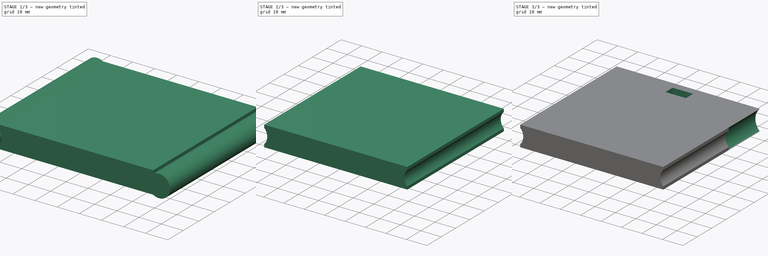
[diagram: build sequence overview — one tinted view per stage of 3, left to right]
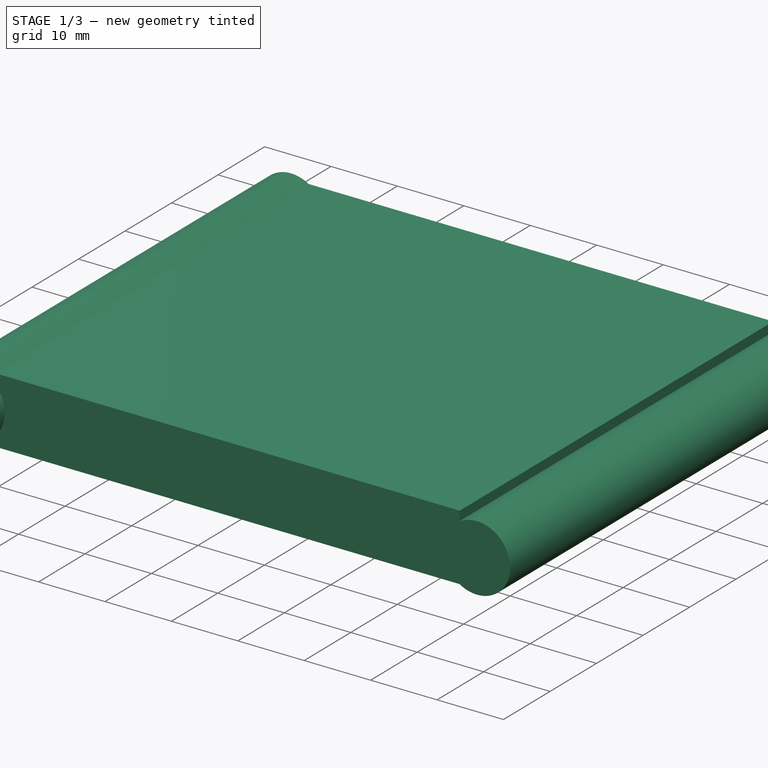
[diagram: stage 1 of 3 — iso view after this stage's code; geometry added in this stage tinted green]
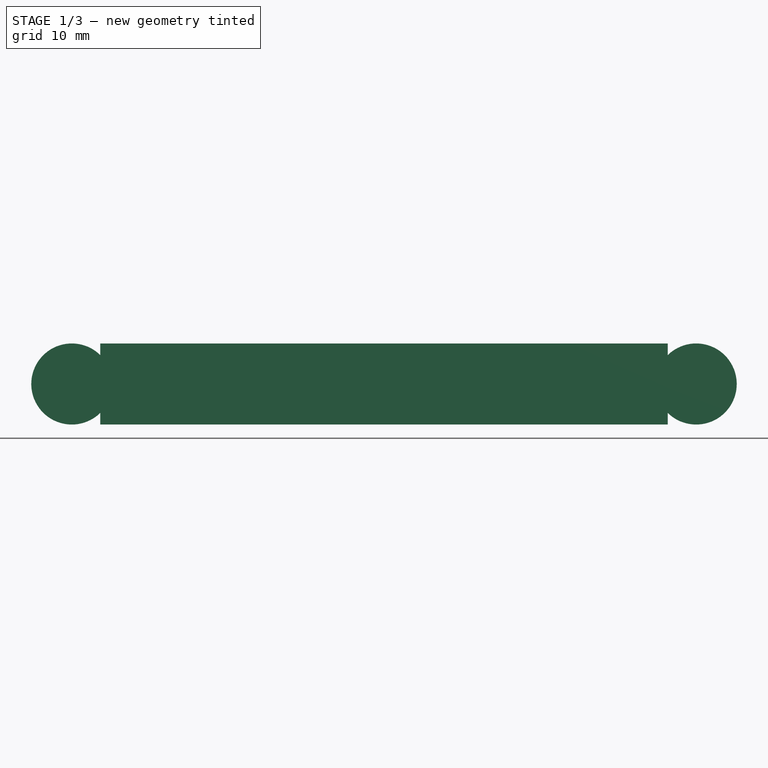
[diagram: stage 1 of 3 — front view after this stage's code; geometry added in this stage tinted green]
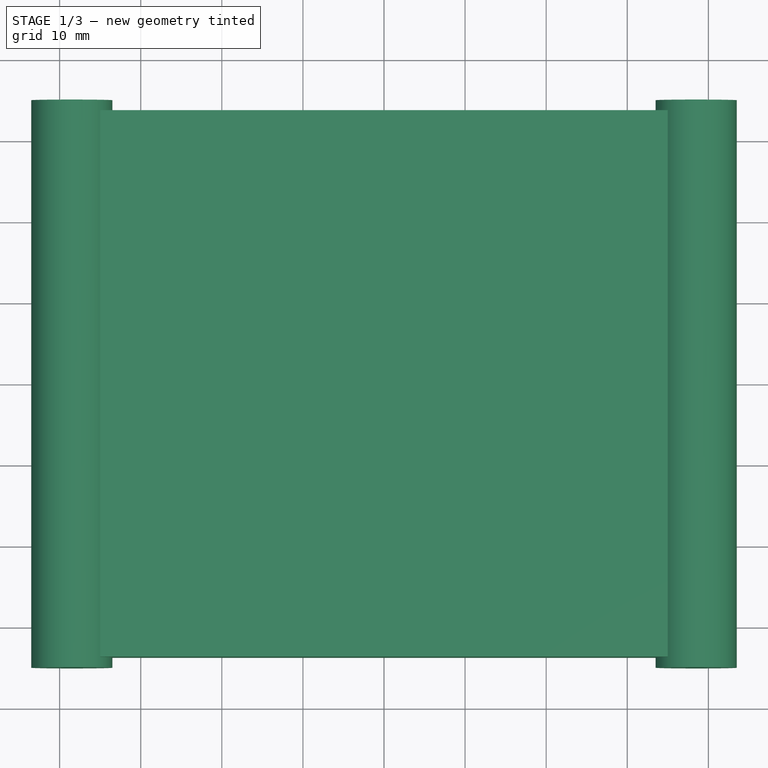
[diagram: stage 1 of 3 — top view after this stage's code; geometry added in this stage tinted green]
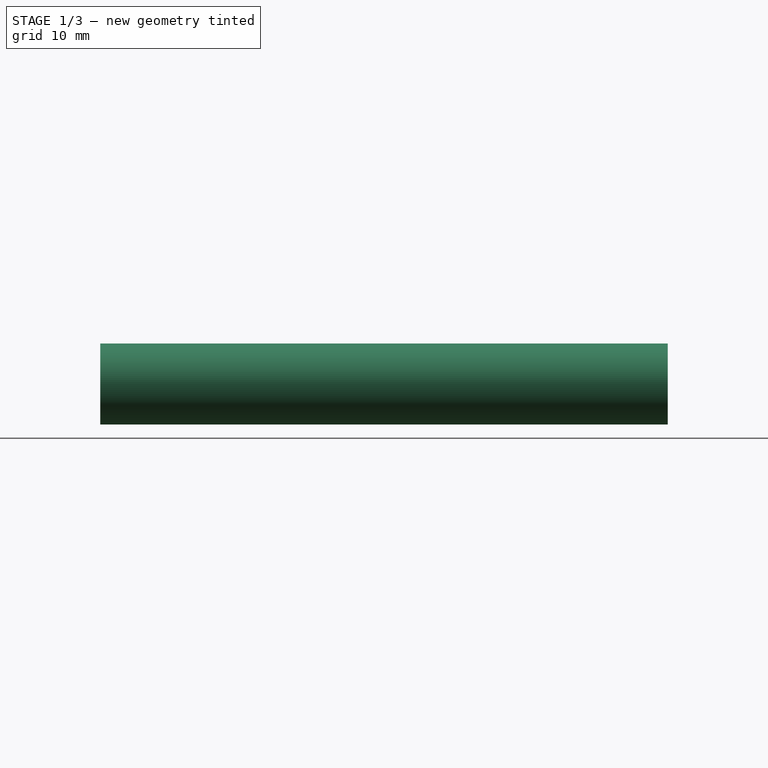
[diagram: stage 1 of 3 — right view after this stage's code; geometry added in this stage tinted green]
FCSTD DOCUMENT  (FreeCAD 0.16R4928 (Git))
Label: termal_insulation
License: CreativeCommons Attribution-ShareAlike
LicenseURL: http://creativecommons.org/licenses/by-sa/4.0/
objects: Sketcher::SketchObject×4, PartDesign::Pad×2, PartDesign::Pocket×2, Part::Cut×1
note: 13 computed .brp shape members not serialized (recipe doc carries the construction recipe); baked Part::Feature solids carry a one-line shape summary decoded from their .brp

FEATURE [Sketcher::SketchObject] Sketch
  sketch-geometry (4):
    g0: LineSegment StartX=-35 StartY=33.7 StartZ=0 EndX=35 EndY=33.7 EndZ=0
    g1: LineSegment StartX=35 StartY=33.7 StartZ=0 EndX=35 EndY=-33.7 EndZ=0
    g2: LineSegment StartX=35 StartY=-33.7 StartZ=0 EndX=-35 EndY=-33.7 EndZ=0
    g3: LineSegment StartX=-35 StartY=-33.7 StartZ=0 EndX=-35 EndY=33.7 EndZ=0
  constraints (11):
    c: Coincident(g0,g1)
    c: Coincident(g1,g2)
    c: Coincident(g2,g3)
    c: Coincident(g3,g0)
    c: Horizontal(g0)
    c: Horizontal(g2)
    c: Vertical(g1)
    c: Vertical(g3)
    c: Symmetric(g1,g0,g-1)
    c: DistanceX(g0) = 70
    c: DistanceY(g1) = -67.4
FEATURE [PartDesign::Pad] Pad
  Length = 10
  Length2 = 100
  Midplane = true
  Sketch = -> Sketch
  Type = 0
FEATURE [Sketcher::SketchObject] Sketch001
  Placement = pos=(0,0,0) rot=(-1,0,0;4.71239rad)
  sketch-geometry (4):
    g0: Circle CenterX=-38.5 CenterY=0 CenterZ=0 NormalX=0 NormalY=0 NormalZ=1 Radius=5
    g1: Circle CenterX=38.5 CenterY=0 CenterZ=0 NormalX=0 NormalY=0 NormalZ=1 Radius=5
    g2: GeomPoint [constr] X=-33.5 Y=0 Z=0
    g3: GeomPoint [constr] X=33.5 Y=0 Z=0
  constraints (9):
    c: Equal(g0,g1)
    c: Symmetric(g1,g0,g-1)
    c: PointOnObject(g1,g-1)
    c: PointOnObject(g2,g0)
    c: PointOnObject(g2,g-1)
    c: PointOnObject(g3,g1)
    c: PointOnObject(g3,g-1)
    c: DistanceX(g2,g3) = 67
    c: Radius(g1) = 5
FEATURE [PartDesign::Pad] Pad001
  Length = 70
  Length2 = 100
  Midplane = true
  Placement = pos=(0,0,0) rot=(-1,0,0;4.71239rad)
  Sketch = -> Sketch001
  Type = 0
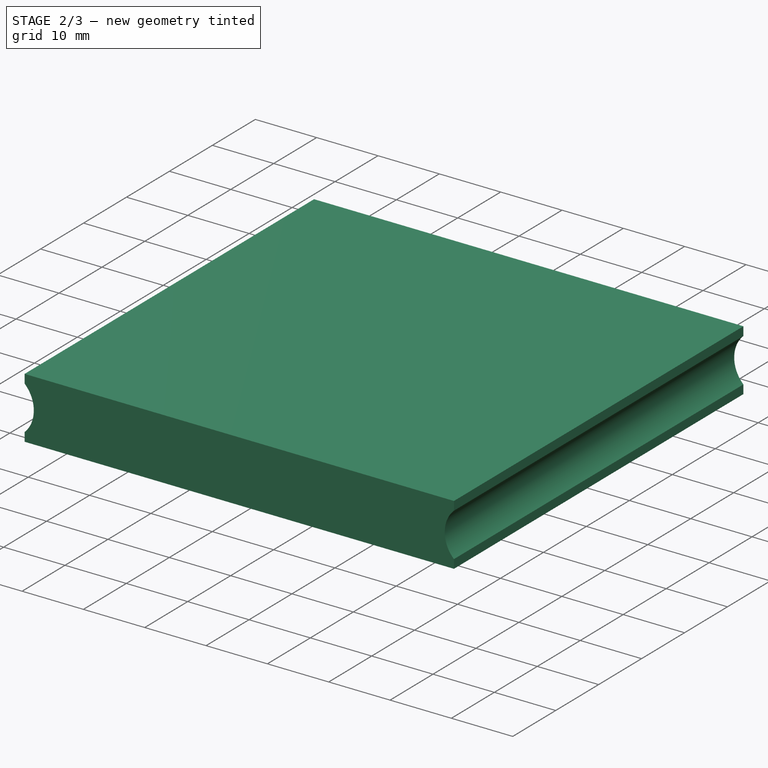
[diagram: stage 2 of 3 — iso view after this stage's code; geometry added in this stage tinted green]
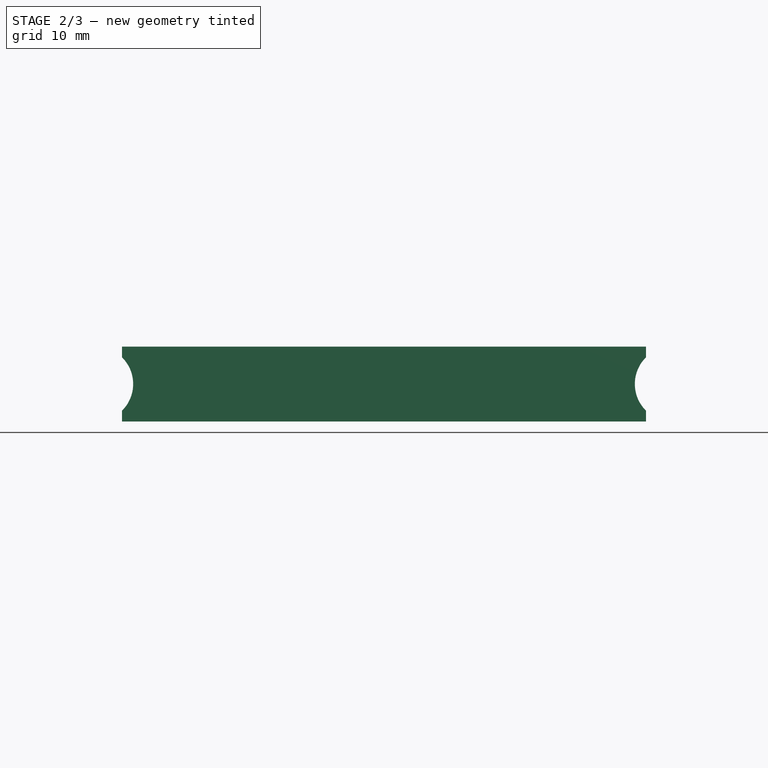
[diagram: stage 2 of 3 — front view after this stage's code; geometry added in this stage tinted green]
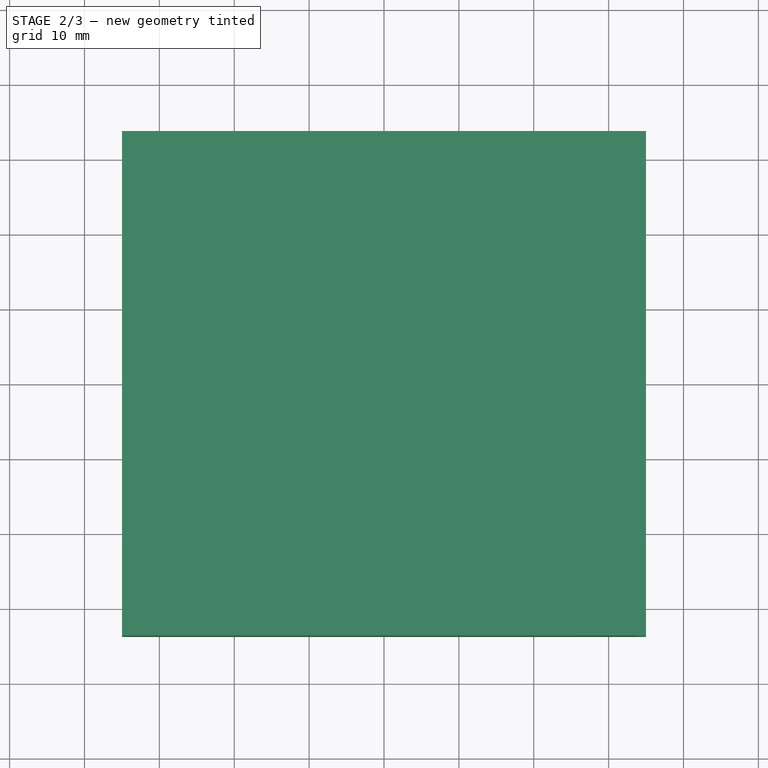
[diagram: stage 2 of 3 — top view after this stage's code; geometry added in this stage tinted green]
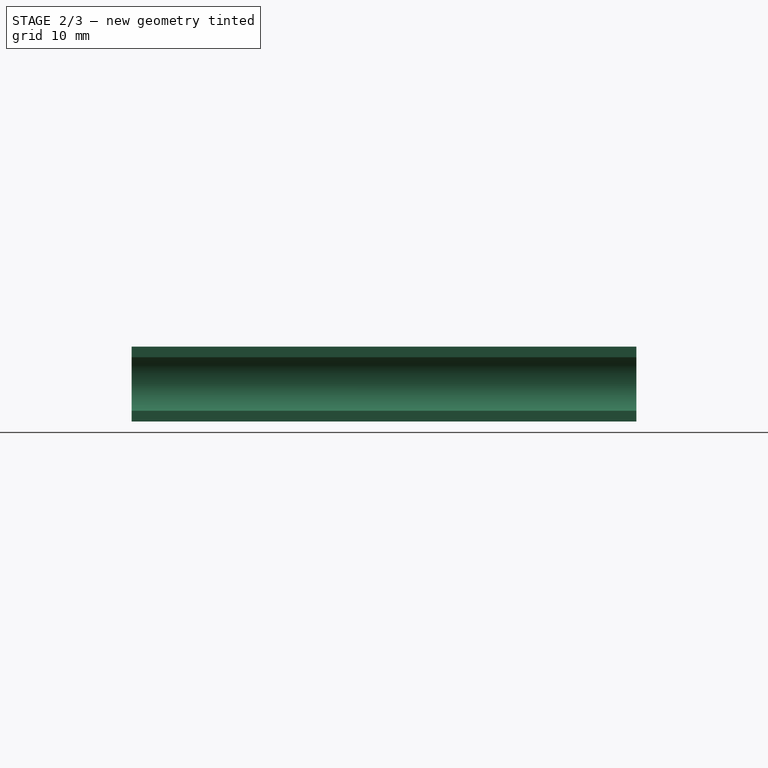
[diagram: stage 2 of 3 — right view after this stage's code; geometry added in this stage tinted green]
FEATURE [Part::Cut] Cut
  Base = -> Pad
  Tool = -> Pad001
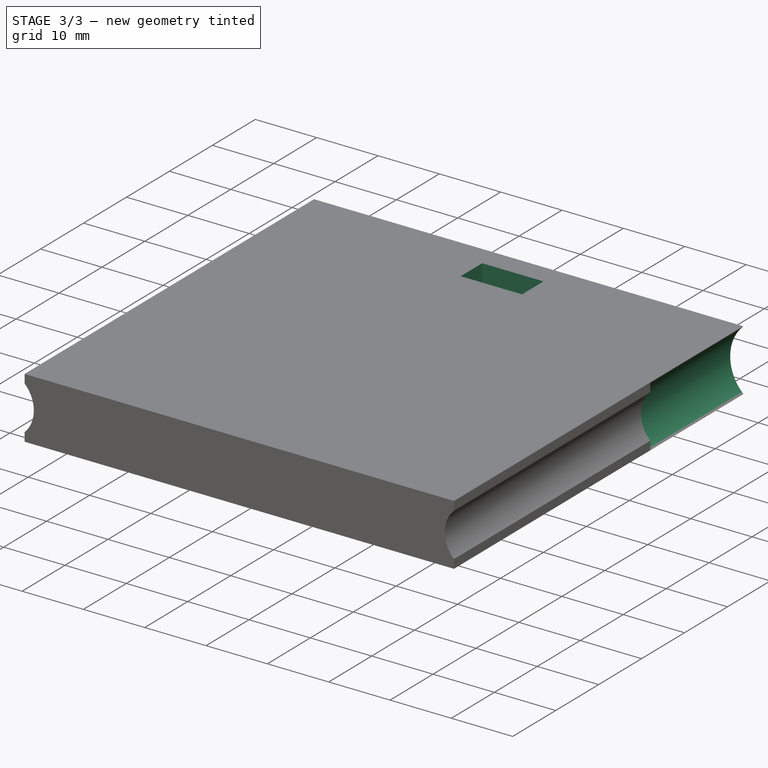
[diagram: stage 3 of 3 — iso view after this stage's code; geometry added in this stage tinted green]
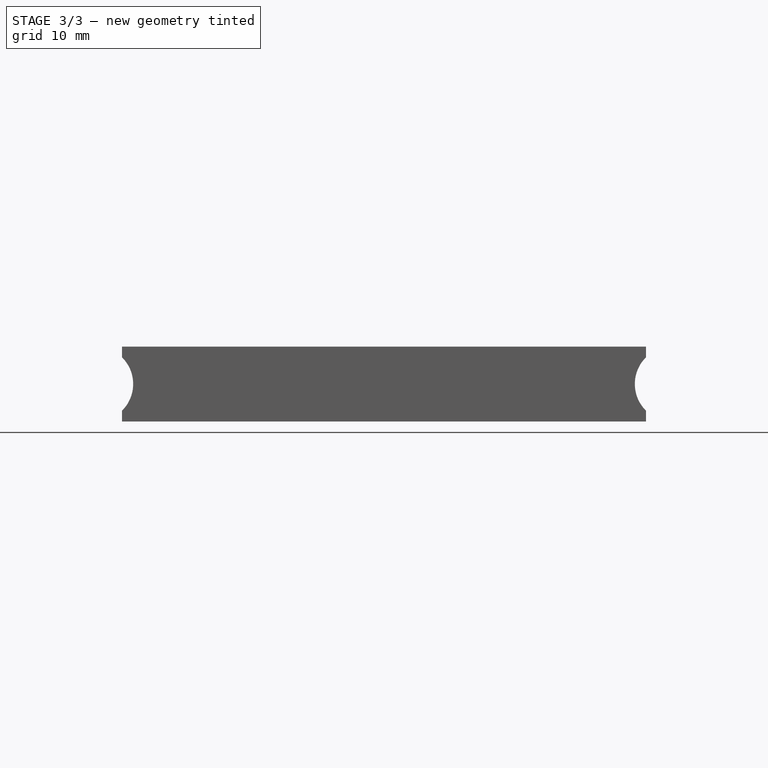
[diagram: stage 3 of 3 — front view after this stage's code; geometry added in this stage tinted green]
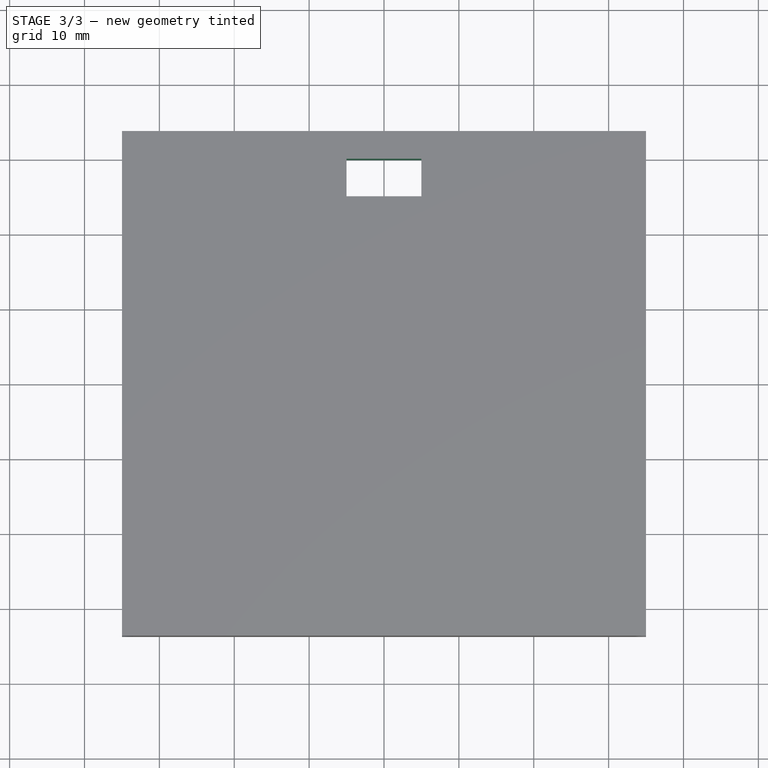
[diagram: stage 3 of 3 — top view after this stage's code; geometry added in this stage tinted green]
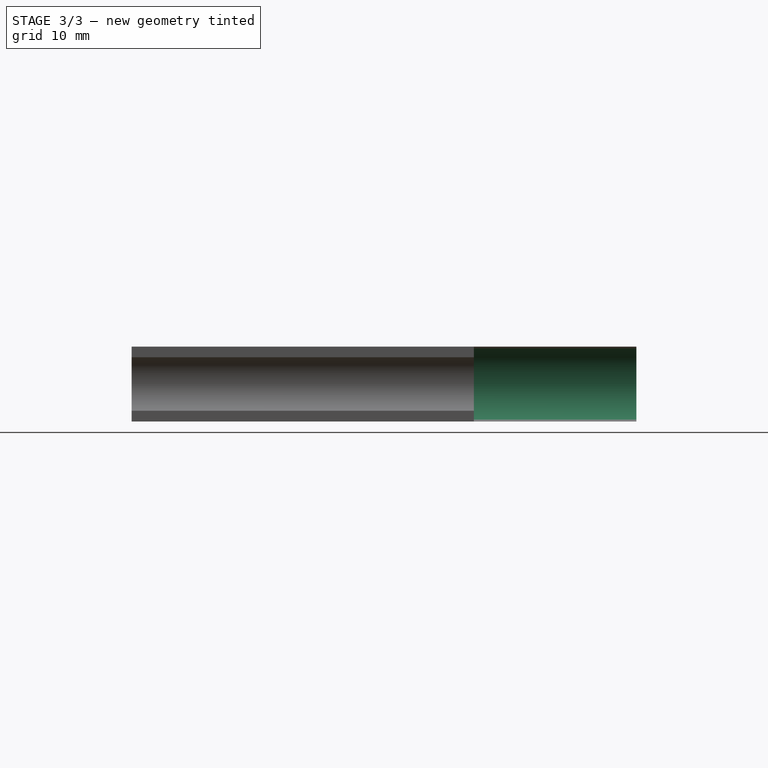
[diagram: stage 3 of 3 — right view after this stage's code; geometry added in this stage tinted green]
FEATURE [Sketcher::SketchObject] Sketch002
  Placement = pos=(0,0,5) rot=(0,0,1;0rad)
  Support = -> Cut [Face6]
  sketch-geometry (4):
    g0: LineSegment StartX=-5 StartY=30 StartZ=0 EndX=5 EndY=30 EndZ=0
    g1: LineSegment StartX=5 StartY=30 StartZ=0 EndX=5 EndY=25 EndZ=0
    g2: LineSegment StartX=5 StartY=25 StartZ=0 EndX=-5 EndY=25 EndZ=0
    g3: LineSegment StartX=-5 StartY=25 StartZ=0 EndX=-5 EndY=30 EndZ=0
  constraints (12):
    c: Coincident(g0,g1)
    c: Coincident(g1,g2)
    c: Coincident(g2,g3)
    c: Coincident(g3,g0)
    c: Horizontal(g0)
    c: Horizontal(g2)
    c: Vertical(g1)
    c: Vertical(g3)
    c: DistanceX(g0) = 10
    c: DistanceY(g1) = -5
    c: Symmetric(g0,g0,g-2)
    c: DistanceY(g2) = 25
FEATURE [PartDesign::Pocket] Pocket
  Length = 5
  Sketch = -> Sketch002
  Type = 1
FEATURE [Sketcher::SketchObject] Sketch003
  Placement = pos=(0,33.7,0) rot=(0,0.707107,0.707107;3.14159rad)
  Support = -> Pocket [Face1]
  sketch-geometry (4):
    g0: Circle CenterX=-39.7 CenterY=0 CenterZ=0 NormalX=0 NormalY=0 NormalZ=1 Radius=6.85
    g1: Circle CenterX=39.7 CenterY=0 CenterZ=0 NormalX=0 NormalY=0 NormalZ=1 Radius=6.85
    g2: GeomPoint [constr] X=-32.85 Y=0 Z=0
    g3: GeomPoint [constr] X=32.85 Y=0 Z=0
  constraints (9):
    c: Symmetric(g1,g0,g-1)
    c: PointOnObject(g1,g-1)
    c: PointOnObject(g2,g0)
    c: PointOnObject(g2,g-1)
    c: PointOnObject(g3,g1)
    c: PointOnObject(g3,g-1)
    c: DistanceX(g3,g2) = -65.7
    c: Radius(g1) = 6.85
    c: Equal(g0,g1)
FEATURE [PartDesign::Pocket] Pocket001
  Length = 21.7
  Sketch = -> Sketch003
  Type = 0
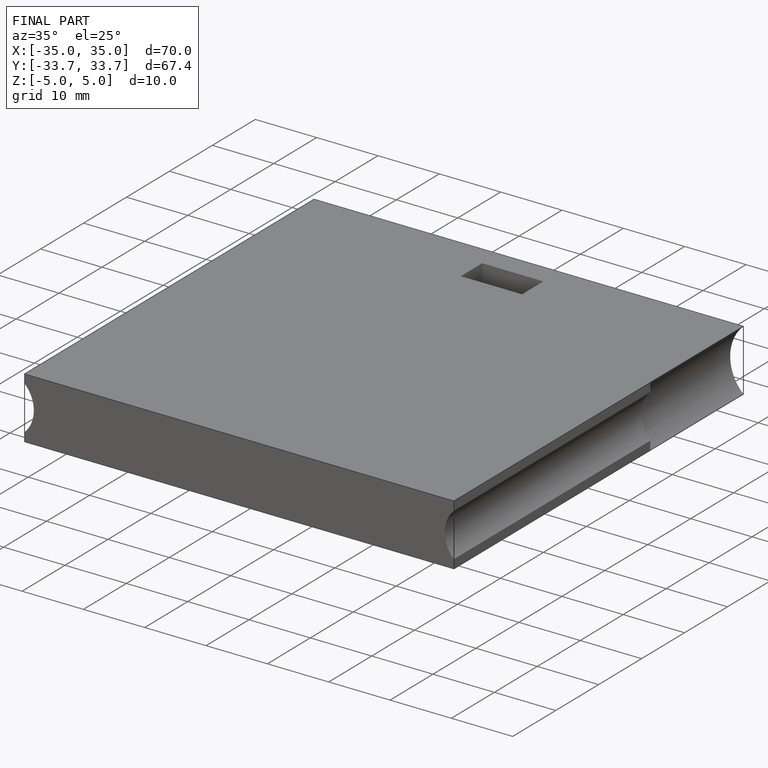
[diagram: finished part — iso view with bounding-box wireframe]
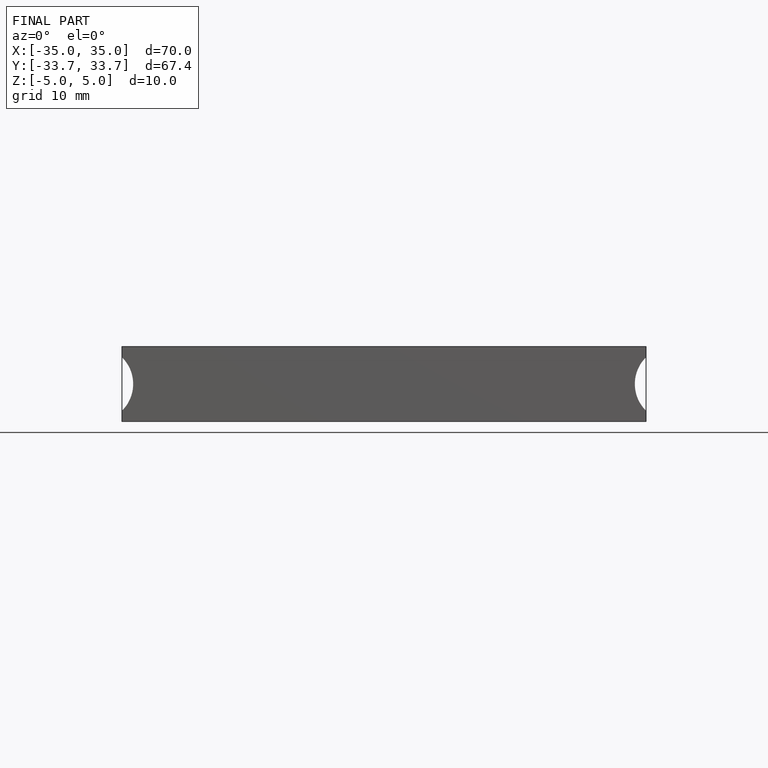
[diagram: finished part — front view with bounding-box wireframe]
